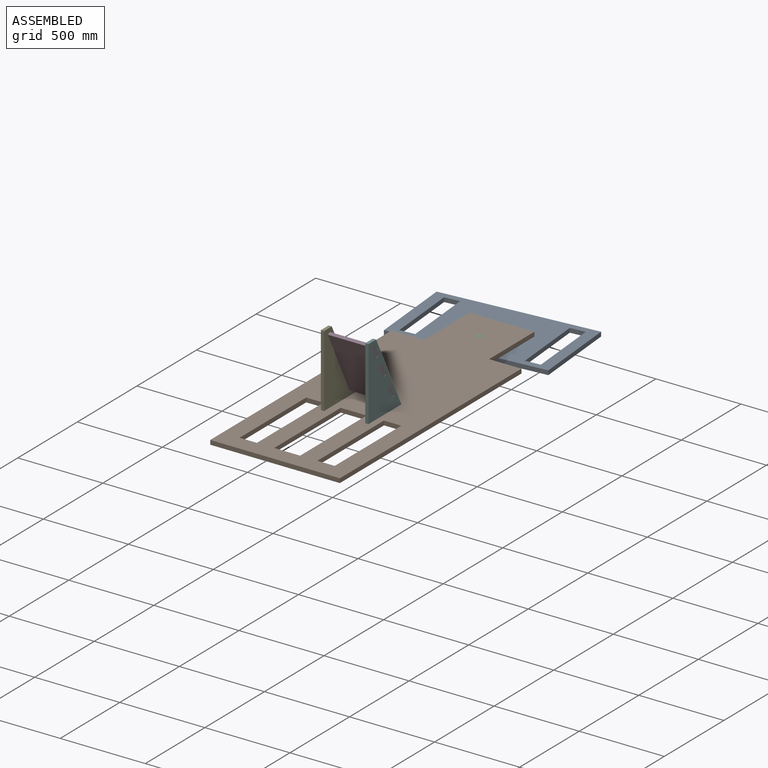
[diagram: assembled view]
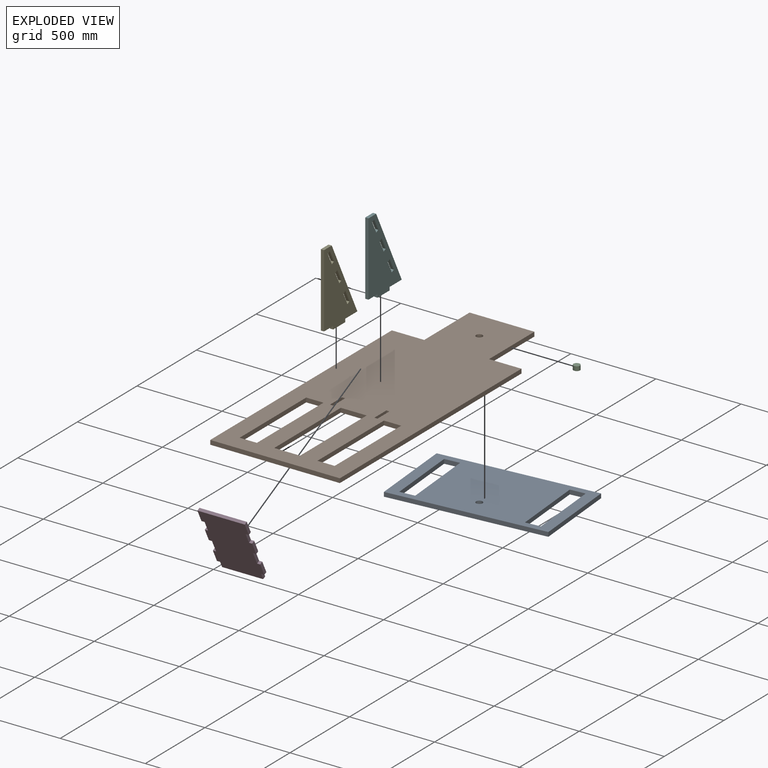
[diagram: exploded view]
GUIDED TOUR — MATED ASSEMBLY (Onshape document 1c93851bcb6e100bab357038, AutoMate assembly 1c93851bcb6e100bab357038_e6ac2ed9f48d29014256909e_0fe0a96ea02c02f15e49d33c_default)

This assembly has 6 components, labeled P0..P5 below (a component is one placed occurrence of a part; the same part can appear more than once), held together by 5 mates. A mate is a constraint between two components; its type names the relative motion it leaves free:
  FASTENED — locks the two components together rigidly (no relative motion),
  REVOLUTE — leaves rotation about the listed axis free (a hinge).
Axis/direction vectors are unit vectors and 'through' points are millimeter coordinates, both in the assembly's world frame.

MATES
  1. FASTENED "Fastened 2": P1 <-> P2, direction (0.000, 0.000, 1.000) through (185.81, 1752.47, -232.34) mm
  2. FASTENED "Fastened 1": P5 <-> P1, direction (0.000, 0.000, -1.000) through (306.72, 799.97, -257.74) mm
  3. FASTENED "Fastened 4": P3 <-> P4, direction (0.000, -0.895, -0.445) through (45.86, 818.07, -168.92) mm
  4. REVOLUTE "Revolute 1": P0 <-> P1, axis (0.000, 0.000, 1.000) through (185.81, 1752.47, -257.74) mm
  5. FASTENED "Fastened 3": P4 <-> P1, direction (0.000, 0.000, -1.000) through (64.91, 799.97, -257.74) mm

ASSEMBLY ORDER
  1. P1 — the base component [order verified]
  2. P4 [order verified]
  3. P5 [order verified]
  4. P3 [order verified]
  5. P2 [order verified]
  6. P0 [order verified]
Order-tag legend:
  [order verified] — this step's position reverses a verified removal order: the component was checked to insert without passing through the ones already placed.

Of the 6 components, 4 carry the full construction recipe — the FeatureScript program that regenerates the part's solid from scratch; the rest are supplied as boundary geometry only.
Each toured component is shown spotlighted twice — in the assembled view, then in the exploded view, where a leader line traces a displaced component back to its assembled socket (saturated green if recipe-attached, orange if geometry-only; every other component desaturated gray) — followed by its recipe or geometry summary and the mates that hold it.
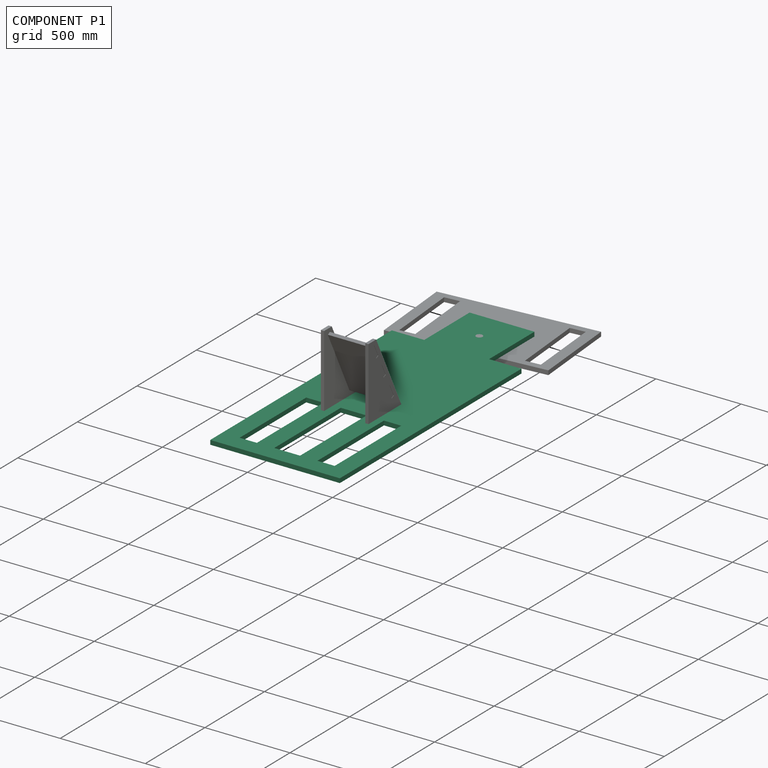
[diagram: component P1 — assembled]
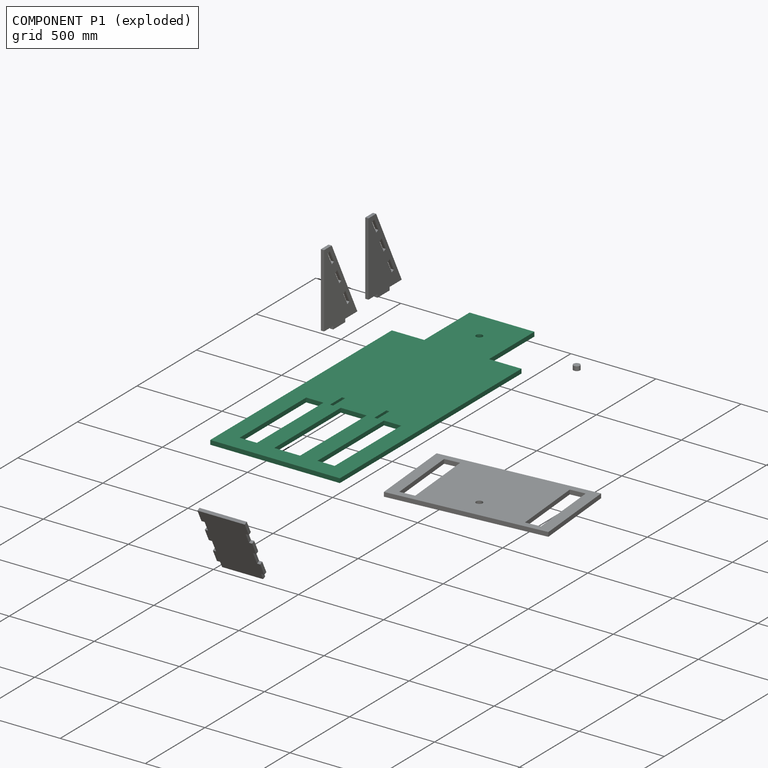
[diagram: component P1 — exploded]
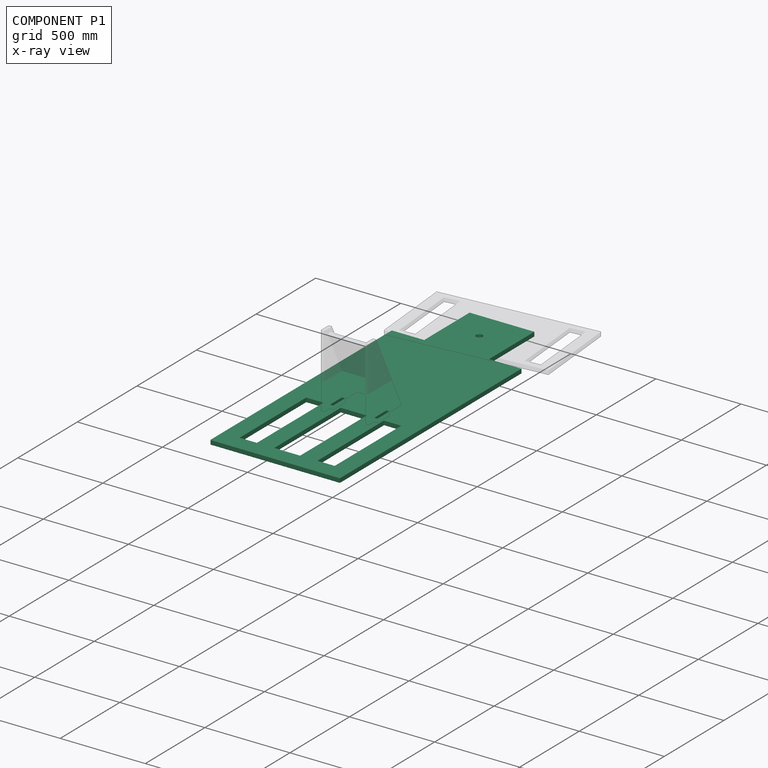
[diagram: component P1 — x-ray view]
COMPONENT P1 — recipe-attached (CADFS 00478632, mesh-verified: the recipe's output STEP matches this component's geometry to below the mesh-comparison resolution (tessellation chordal tolerance ~3.08 mm)).
Held by: FASTENED mate "Fastened 2" to P2; FASTENED mate "Fastened 1" to P5; REVOLUTE mate "Revolute 1" to P0; FASTENED mate "Fastened 3" to P4.
Construction recipe (FeatureScript — the CAD program that rebuilds this solid; sketch coordinates are in the units given by the * unit suffixes, e.g. mm):

FeatureScript 1511;
import(path : "onshape/std/geometry.fs", version : "1511.0");
import(path : "onshape/std/common.fs", version : "1511.0");
const mm = millimeter;
const VERTEX = EntityType.VERTEX;
const EDGE = EntityType.EDGE;
const FACE = EntityType.FACE;
const BODY = EntityType.BODY;
function v(x, y){return vector(x, y);}
function OD(order){return orderDisambiguation(order);}
function OSD(set){return originalSetDisambiguation(set);}
function TD(topology){return topologyDisambiguation(topology);}
function TDD(query){return trueDependencyDisambiguation(query);}
function sQuery(a, b, c) {return sketchEntityQuery(a, b, c);}

annotation { "Feature Type Name" : "Feature", "Feature Type Description" : "" }
export const myFeature = defineFeature(function(context is Context, id is Id, definition is map)
    precondition{}
    {
        {
            var Q0;
            Q0=qCreatedBy(makeId("Top.planeOp"),FACE);
            var sketch = newSketch(context, id + "F0", { "sketchPlane" : qUnion([Q0])});
            skLineSegment(sketch, "E0.bottom", {"start": v(381, 762) * mm, "end": v(-381, 762) * mm});
            skLineSegment(sketch, "E0.top", {"start": v(381, -762) * mm, "end": v(-381, -762) * mm});
            skLineSegment(sketch, "E0.left", {"start": v(381, 762) * mm, "end": v(381, -762) * mm});
            skLineSegment(sketch, "E0.right", {"start": v(-381, 762) * mm, "end": v(-381, -762) * mm});
            skPoint(sketch, "E0.middle", {"position": v(0, 0) * mm});
            skLineSegment(sketch, "E1.bottom", {"start": v(-190.5, 1143) * mm, "end": v(190.5, 1143) * mm});
            skLineSegment(sketch, "E1.top", {"start": v(-190.5, 762) * mm, "end": v(190.5, 762) * mm});
            skLineSegment(sketch, "E1.left", {"start": v(-190.5, 1143) * mm, "end": v(-190.5, 762) * mm});
            skLineSegment(sketch, "E1.right", {"start": v(190.5, 1143) * mm, "end": v(190.5, 762) * mm});
            skLineSegment(sketch, "E2", {"start": v(0, 762) * mm, "end": v(381, 762) * mm, "construction": true});
            skLineSegment(sketch, "E3", {"start": v(0, 762) * mm, "end": v(0, -762) * mm, "construction": true});
            skLineSegment(sketch, "E4.bottom", {"start": v(76.2, -101.6) * mm, "end": v(-76.2, -101.6) * mm});
            skLineSegment(sketch, "E4.top", {"start": v(76.2, -660.4) * mm, "end": v(-76.2, -660.4) * mm});
            skLineSegment(sketch, "E4.left", {"start": v(76.2, -101.6) * mm, "end": v(76.2, -660.4) * mm});
            skLineSegment(sketch, "E4.right", {"start": v(-76.2, -101.6) * mm, "end": v(-76.2, -660.4) * mm});
            skPoint(sketch, "E4.middle", {"position": v(0, -381) * mm});
            skLineSegment(sketch, "E5", {"start": v(-381, -381) * mm, "end": v(381, -381) * mm, "construction": true});
            skPoint(sketch, "E5.startSnap0", {"position": v(-76.2, -381) * mm});
            skPoint(sketch, "E5.endSnap0", {"position": v(76.2, -381) * mm});
            skLineSegment(sketch, "E6.bottom", {"start": v(-177.8, -101.6) * mm, "end": v(-279.4, -101.6) * mm});
            skLineSegment(sketch, "E6.top", {"start": v(-177.8, -660.4) * mm, "end": v(-279.4, -660.4) * mm});
            skLineSegment(sketch, "E6.left", {"start": v(-177.8, -101.6) * mm, "end": v(-177.8, -660.4) * mm});
            skLineSegment(sketch, "E6.right", {"start": v(-279.4, -101.6) * mm, "end": v(-279.4, -660.4) * mm});
            skPoint(sketch, "E6.middle", {"position": v(-228.6, -381) * mm});
            skPoint(sketch, "E7.MirrorP", {"position": v(228.6, -381) * mm});
            skLineSegment(sketch, "E8.MirrorCS", {"start": v(177.8, -101.6) * mm, "end": v(177.8, -660.4) * mm});
            skLineSegment(sketch, "E9.MirrorCS", {"start": v(279.4, -101.6) * mm, "end": v(279.4, -660.4) * mm});
            skLineSegment(sketch, "E10.MirrorCS", {"start": v(177.8, -660.4) * mm, "end": v(279.4, -660.4) * mm});
            skLineSegment(sketch, "E11.MirrorCS", {"start": v(177.8, -101.6) * mm, "end": v(279.4, -101.6) * mm});
            skLineSegment(sketch, "E12", {"start": v(0, -50.8) * mm, "end": v(381, -50.8) * mm, "construction": true});
            skPoint(sketch, "E13.cornerSnap0", {"position": v(190.5, -50.8) * mm});
            skLineSegment(sketch, "E14.bottom", {"start": v(139.45, 0) * mm, "end": v(120.9, 0) * mm});
            skLineSegment(sketch, "E14.top", {"start": v(139.45, -101.6) * mm, "end": v(120.9, -101.6) * mm});
            skLineSegment(sketch, "E14.left", {"start": v(139.45, 0) * mm, "end": v(139.45, -101.6) * mm});
            skLineSegment(sketch, "E14.right", {"start": v(120.9, 0) * mm, "end": v(120.9, -101.6) * mm});
            skPoint(sketch, "E14.middle", {"position": v(130.18, -50.8) * mm});
            skLineSegment(sketch, "E15.MirrorCS", {"start": v(-139.45, 0) * mm, "end": v(-120.9, 0) * mm});
            skLineSegment(sketch, "E16.MirrorCS", {"start": v(-139.45, -101.6) * mm, "end": v(-120.9, -101.6) * mm});
            skLineSegment(sketch, "E17.MirrorCS", {"start": v(-139.45, 0) * mm, "end": v(-139.45, -101.6) * mm});
            skLineSegment(sketch, "E18.MirrorCS", {"start": v(-120.9, 0) * mm, "end": v(-120.9, -101.6) * mm});
            skPoint(sketch, "E19.MirrorP", {"position": v(-130.18, -50.8) * mm});
            skLineSegment(sketch, "E20", {"start": v(0, 1143) * mm, "end": v(0, 762) * mm, "construction": true});
            skCircle(sketch, "E21", {"center": v(0, 952.5) * mm, "radius": 19.05 * mm});
            skSolve(sketch);
        }
        {
            var Q0;
            Q0=makeQuery(id+"F0.imprint","IMPRINT",FACE,{"disambiguationData":[TD([[makeQuery(id+"F0.imprint","IMPRINT",EDGE,{"derivedFrom":sQuery(id+"F0.wireOp",EDGE,"E0.top")}),-1.0]])]});
            var Q1;
            Q1=makeQuery(id+"F0.imprint","IMPRINT",FACE,{"disambiguationData":[TD([[makeQuery(id+"F0.imprint","IMPRINT",EDGE,{"derivedFrom":sQuery(id+"F0.wireOp",EDGE,"E1.bottom")}),-1.0]])]});
            extrude(context, id + "F1", {"entities" : qUnion([Q0, Q1]), "depth" : 25.4 * mm, "offsetDistance" : 25.4 * mm});
        }
    });
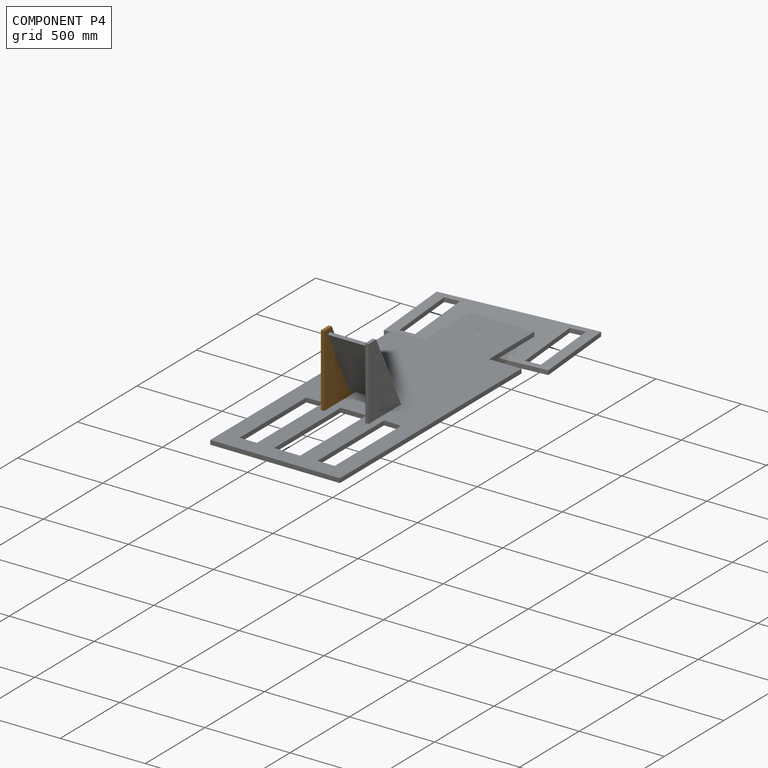
[diagram: component P4 — assembled]
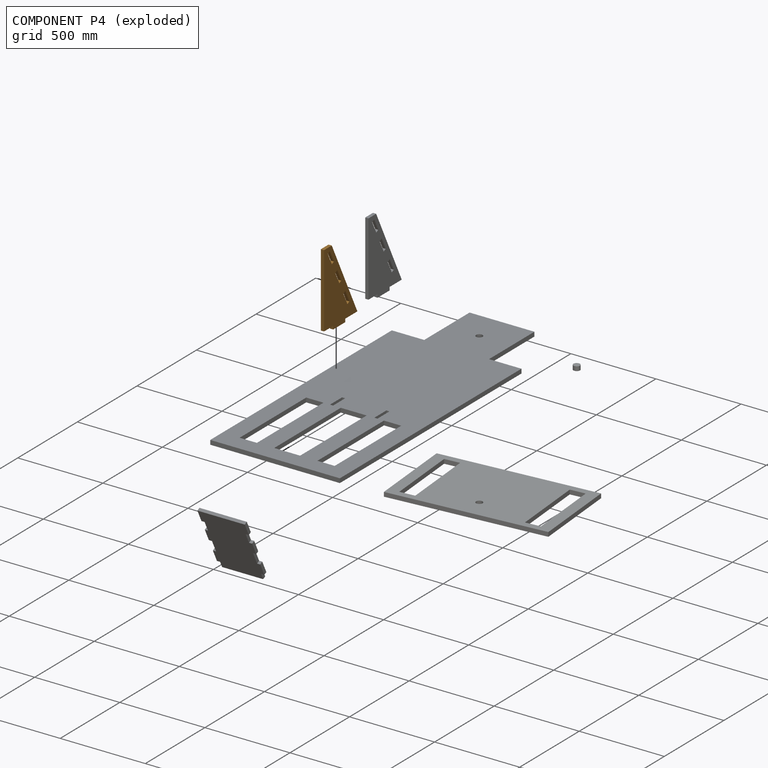
[diagram: component P4 — exploded]
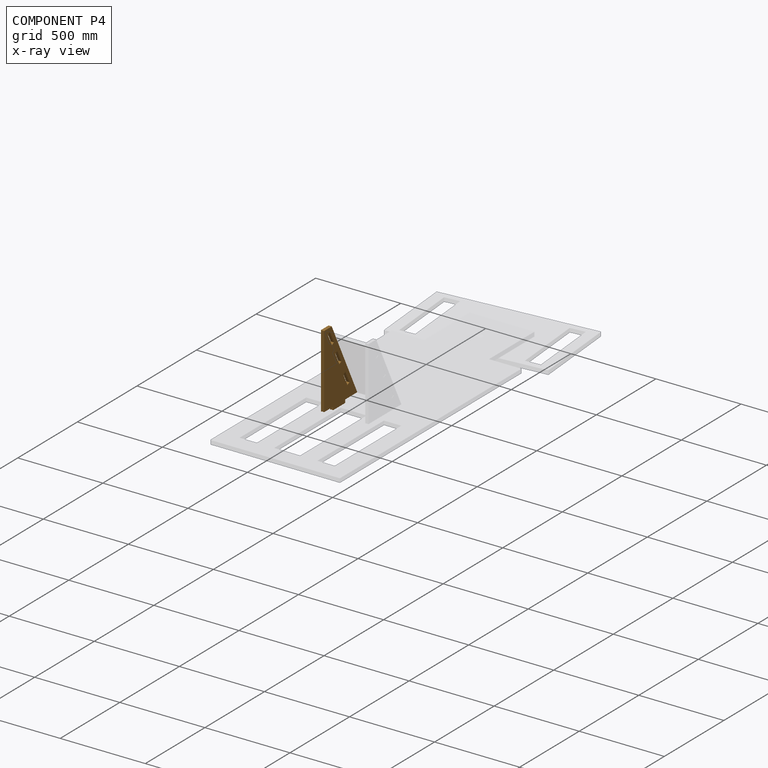
[diagram: component P4 — x-ray view]
COMPONENT P4 — geometry summary (no construction recipe available for this part):
  bounding box: 450.3 x 279.4 x 19.1 mm
  B-rep topology: 1 solid, 22 faces, 120 edges
  volume: 1369392 mm^3 (57% of its bounding box)
  symmetry: mirror-symmetric across its x mid-plane
Held by: FASTENED mate "Fastened 4" to P3; FASTENED mate "Fastened 3" to P1.
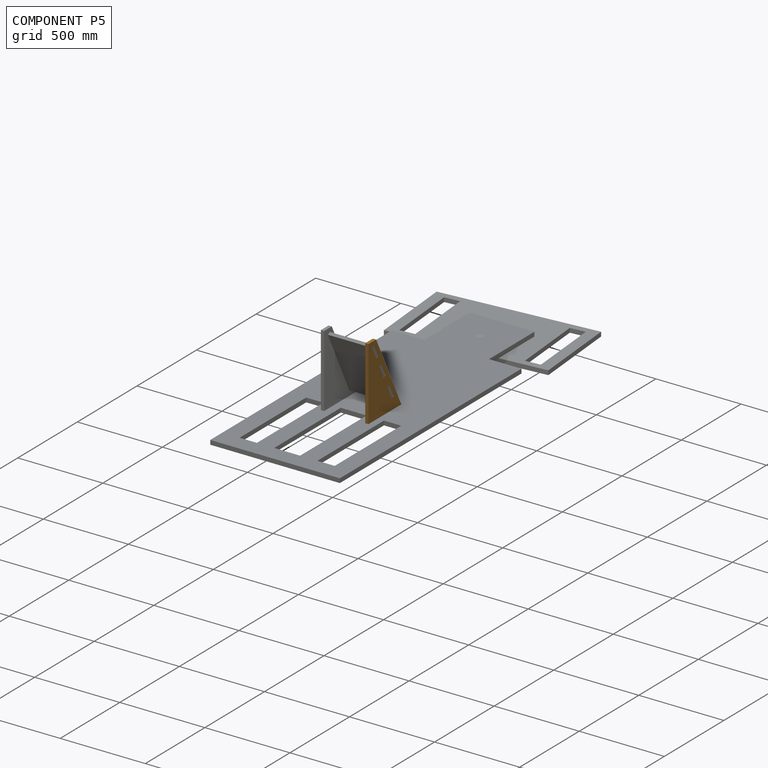
[diagram: component P5 — assembled]
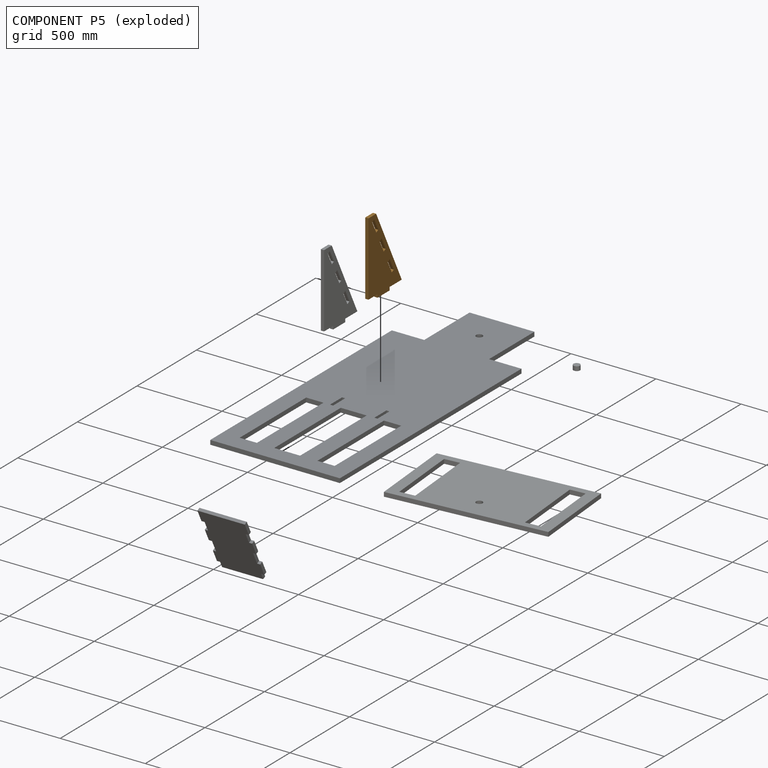
[diagram: component P5 — exploded]
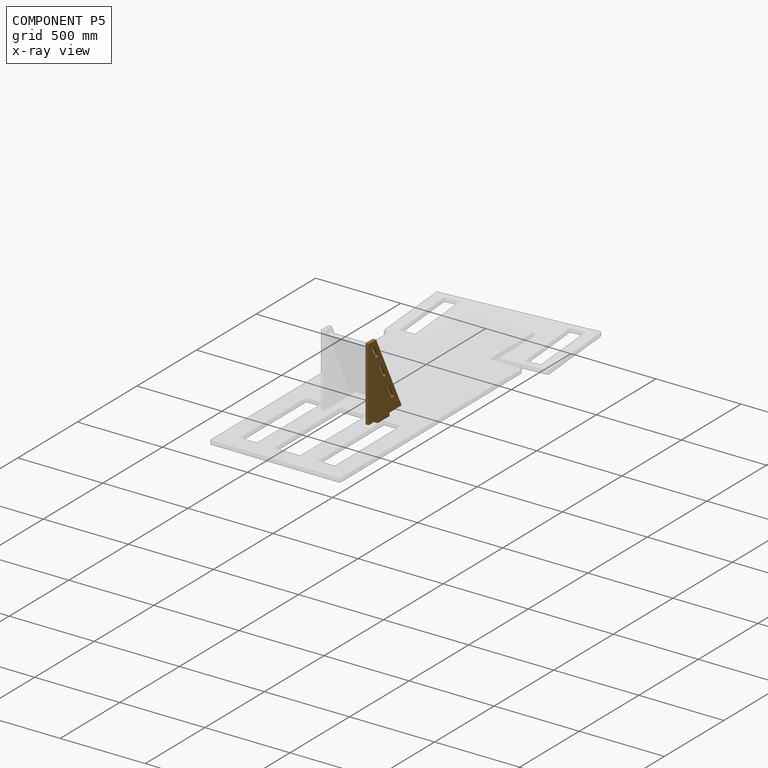
[diagram: component P5 — x-ray view]
COMPONENT P5 — geometry summary (no construction recipe available for this part):
  bounding box: 450.3 x 279.4 x 19.1 mm
  B-rep topology: 1 solid, 22 faces, 120 edges
  volume: 1369392 mm^3 (57% of its bounding box)
  symmetry: mirror-symmetric across its x mid-plane
Held by: FASTENED mate "Fastened 1" to P1.
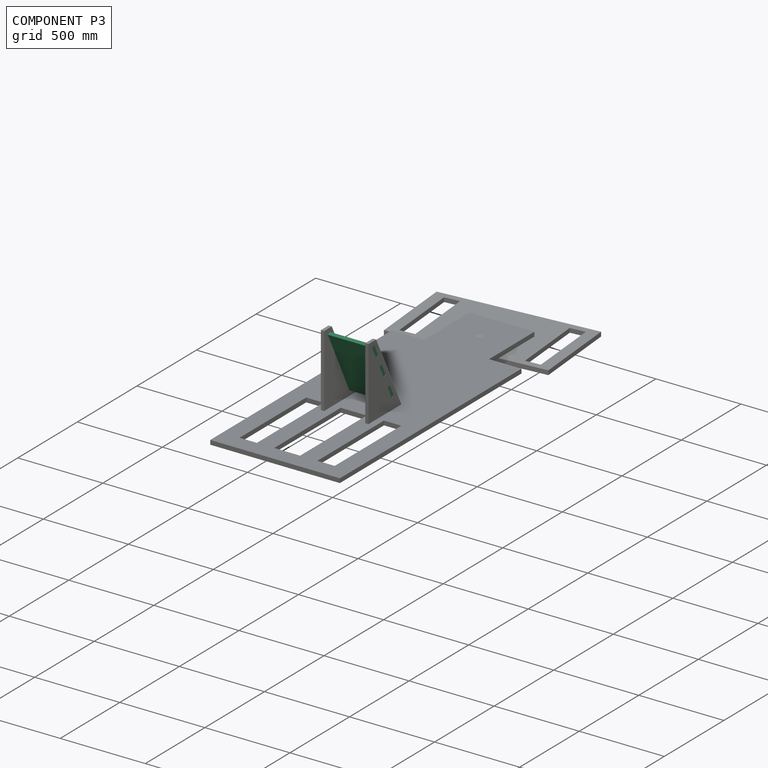
[diagram: component P3 — assembled]
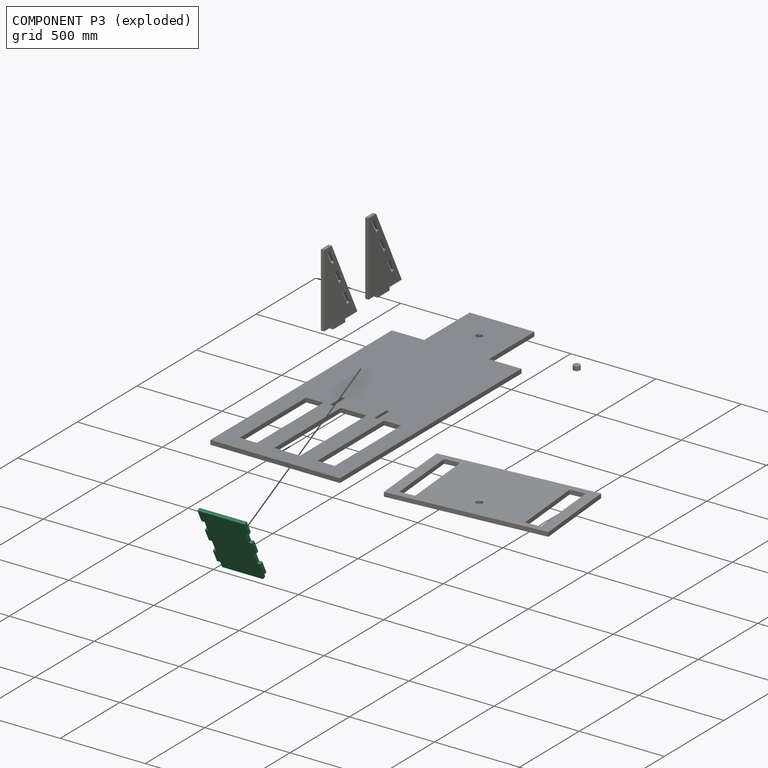
[diagram: component P3 — exploded]
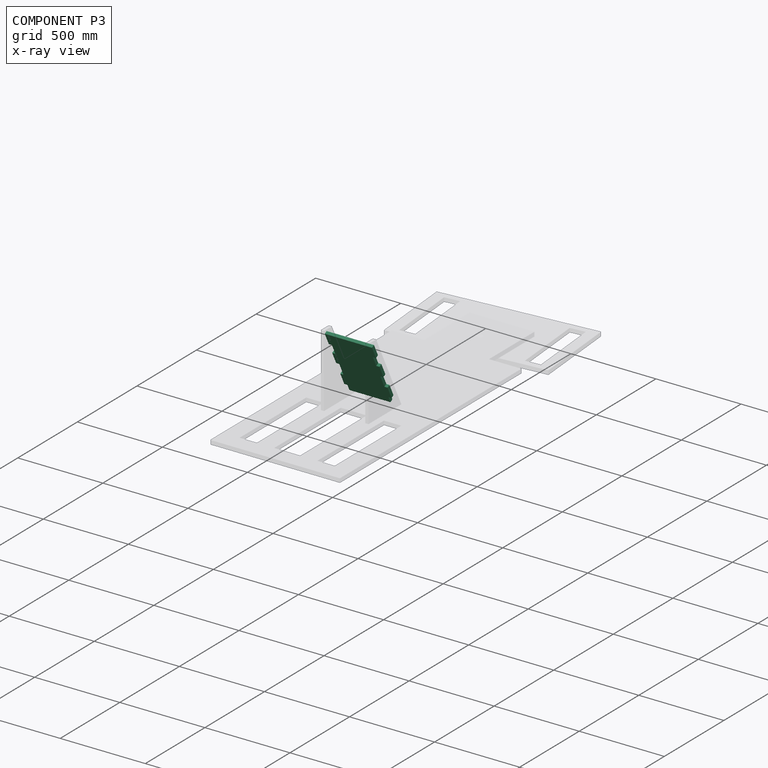
[diagram: component P3 — x-ray view]
COMPONENT P3 — recipe-attached (CADFS 00478639, mesh-verified: the recipe's output STEP matches this component's geometry to below the mesh-comparison resolution (tessellation chordal tolerance ~0.739 mm)).
Held by: FASTENED mate "Fastened 4" to P4.
Construction recipe (FeatureScript — the CAD program that rebuilds this solid; sketch coordinates are in the units given by the * unit suffixes, e.g. mm):

FeatureScript 1511;
import(path : "onshape/std/geometry.fs", version : "1511.0");
import(path : "onshape/std/common.fs", version : "1511.0");
const mm = millimeter;
const VERTEX = EntityType.VERTEX;
const EDGE = EntityType.EDGE;
const FACE = EntityType.FACE;
const BODY = EntityType.BODY;
function v(x, y){return vector(x, y);}
function OD(order){return orderDisambiguation(order);}
function OSD(set){return originalSetDisambiguation(set);}
function TD(topology){return topologyDisambiguation(topology);}
function TDD(query){return trueDependencyDisambiguation(query);}
function sQuery(a, b, c) {return sketchEntityQuery(a, b, c);}

annotation { "Feature Type Name" : "Feature", "Feature Type Description" : "" }
export const myFeature = defineFeature(function(context is Context, id is Id, definition is map)
    precondition{}
    {
        {
            var Q0;
            Q0=qCreatedBy(makeId("Top.planeOp"),FACE);
            var sketch = newSketch(context, id + "F0", { "sketchPlane" : qUnion([Q0])});
            skLineSegment(sketch, "E0.bottom", {"start": v(-223.37, 245.65) * mm, "end": v(17.93, 245.65) * mm});
            skLineSegment(sketch, "E0.top", {"start": v(-223.37, -160.75) * mm, "end": v(17.93, -160.75) * mm});
            skLineSegment(sketch, "E0.left", {"start": v(-223.37, 245.65) * mm, "end": v(-223.37, -160.75) * mm});
            skLineSegment(sketch, "E0.right", {"start": v(17.93, 245.65) * mm, "end": v(17.93, -160.75) * mm});
            skLineSegment(sketch, "E1.bottom", {"start": v(17.93, 245.65) * mm, "end": v(36.47, 245.65) * mm});
            skLineSegment(sketch, "E1.top", {"start": v(17.93, 169.45) * mm, "end": v(36.47, 169.45) * mm});
            skLineSegment(sketch, "E1.left", {"start": v(17.93, 245.65) * mm, "end": v(17.93, 169.45) * mm});
            skLineSegment(sketch, "E1.right", {"start": v(36.47, 245.65) * mm, "end": v(36.47, 169.45) * mm});
            skPoint(sketch, "E2.oppositeSnap0", {"position": v(36.47, 207.55) * mm});
            skLineSegment(sketch, "E2.bottom", {"start": v(17.93, 105.95) * mm, "end": v(36.47, 105.95) * mm});
            skLineSegment(sketch, "E2.top", {"start": v(17.93, 29.75) * mm, "end": v(36.47, 29.75) * mm});
            skLineSegment(sketch, "E2.left", {"start": v(17.93, 105.95) * mm, "end": v(17.93, 29.75) * mm});
            skLineSegment(sketch, "E2.right", {"start": v(36.47, 105.95) * mm, "end": v(36.47, 29.75) * mm});
            skLineSegment(sketch, "E3.bottom", {"start": v(17.93, -46.45) * mm, "end": v(36.47, -46.45) * mm});
            skLineSegment(sketch, "E3.top", {"start": v(17.93, -122.65) * mm, "end": v(36.47, -122.65) * mm});
            skLineSegment(sketch, "E3.left", {"start": v(17.93, -46.45) * mm, "end": v(17.93, -122.65) * mm});
            skLineSegment(sketch, "E3.right", {"start": v(36.47, -46.45) * mm, "end": v(36.47, -122.65) * mm});
            skLineSegment(sketch, "E4", {"start": v(-102.72, 245.65) * mm, "end": v(-102.72, -160.75) * mm, "construction": true});
            skLineSegment(sketch, "E5.MirrorCS", {"start": v(-223.37, 169.45) * mm, "end": v(-241.91, 169.45) * mm});
            skLineSegment(sketch, "E6.MirrorCS", {"start": v(-241.91, 245.65) * mm, "end": v(-241.91, 169.45) * mm});
            skLineSegment(sketch, "E7.MirrorCS", {"start": v(-223.37, 245.65) * mm, "end": v(-241.91, 245.65) * mm});
            skLineSegment(sketch, "E8.MirrorCS", {"start": v(-223.37, 105.95) * mm, "end": v(-241.91, 105.95) * mm});
            skLineSegment(sketch, "E9.MirrorCS", {"start": v(-241.91, 105.95) * mm, "end": v(-241.91, 29.75) * mm});
            skLineSegment(sketch, "E10.MirrorCS", {"start": v(-223.37, 29.75) * mm, "end": v(-241.91, 29.75) * mm});
            skLineSegment(sketch, "E11.MirrorCS", {"start": v(-223.37, -46.45) * mm, "end": v(-241.91, -46.45) * mm});
            skLineSegment(sketch, "E12.MirrorCS", {"start": v(-241.91, -46.45) * mm, "end": v(-241.91, -122.65) * mm});
            skLineSegment(sketch, "E13.MirrorCS", {"start": v(-223.37, -122.65) * mm, "end": v(-241.91, -122.65) * mm});
            skSolve(sketch);
        }
        {
            var Q0;
            {var subQ10=sQuery(id+"F0.wireOp",EDGE,"E0.bottom");Q0=makeQuery(id+"F0.imprint","IMPRINT",FACE,{"disambiguationData":[TD([[makeQuery(id+"F0.imprint","IMPRINT",EDGE,{"derivedFrom":subQ10}),-1.0]])]});}
            var Q1;
            Q1=makeQuery(id+"F0.imprint","IMPRINT",FACE,{"disambiguationData":[TD([[makeQuery(id+"F0.imprint","IMPRINT",EDGE,{"derivedFrom":sQuery(id+"F0.wireOp",EDGE,"E1.bottom")}),-1.0]])]});
            var Q2;
            Q2=makeQuery(id+"F0.imprint","IMPRINT",FACE,{"disambiguationData":[TD([[makeQuery(id+"F0.imprint","IMPRINT",EDGE,{"derivedFrom":sQuery(id+"F0.wireOp",EDGE,"E2.bottom")}),-1.0]])]});
            var Q3;
            Q3=makeQuery(id+"F0.imprint","IMPRINT",FACE,{"disambiguationData":[TD([[makeQuery(id+"F0.imprint","IMPRINT",EDGE,{"derivedFrom":sQuery(id+"F0.wireOp",EDGE,"E3.bottom")}),-1.0]])]});
            var Q4;
            {var subQ0=sQuery(id+"F0.wireOp",EDGE,"E11.MirrorCS");Q4=makeQuery(id+"F0.imprint","IMPRINT",FACE,{"disambiguationData":[TD([[makeQuery(id+"F0.imprint","IMPRINT",EDGE,{"derivedFrom":subQ0}),1.0]])]});}
            var Q5;
            {var subQ0=sQuery(id+"F0.wireOp",EDGE,"E8.MirrorCS");Q5=makeQuery(id+"F0.imprint","IMPRINT",FACE,{"disambiguationData":[TD([[makeQuery(id+"F0.imprint","IMPRINT",EDGE,{"derivedFrom":subQ0}),1.0]])]});}
            var Q6;
            {var subQ2=sQuery(id+"F0.wireOp",EDGE,"E5.MirrorCS");Q6=makeQuery(id+"F0.imprint","IMPRINT",FACE,{"disambiguationData":[TD([[makeQuery(id+"F0.imprint","IMPRINT",EDGE,{"derivedFrom":subQ2}),-1.0]])]});}
            extrude(context, id + "F1", {"entities" : qUnion([Q0, Q1, Q2, Q3, Q4, Q5, Q6]), "depth" : 19.05 * mm, "offsetDistance" : 25.4 * mm});
        }
    });
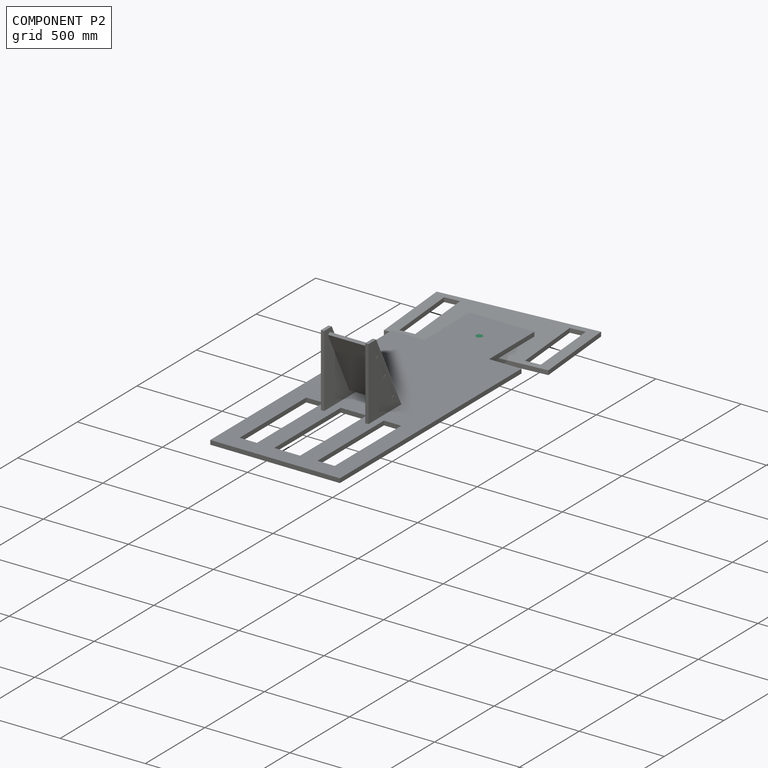
[diagram: component P2 — assembled]
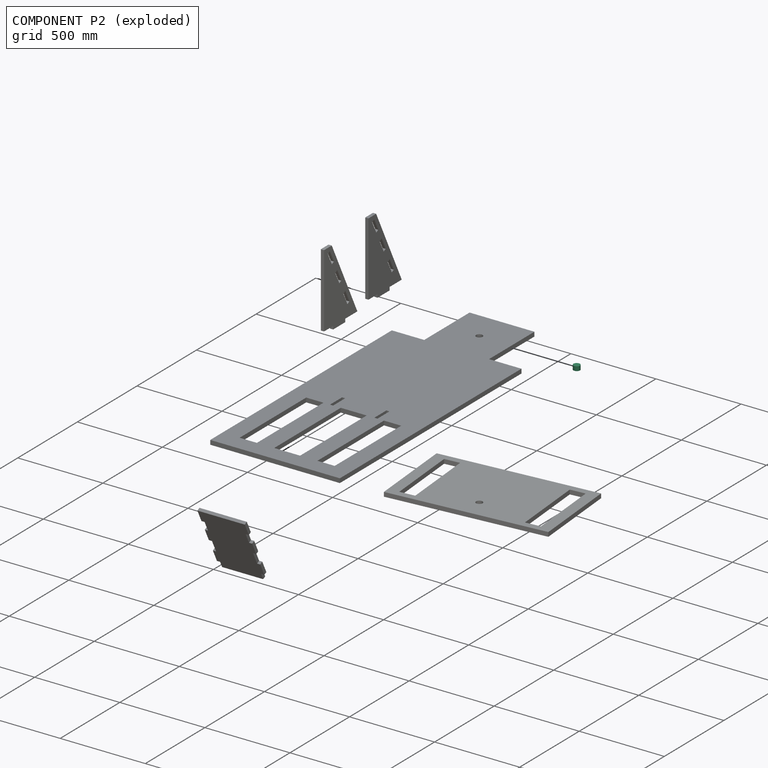
[diagram: component P2 — exploded]
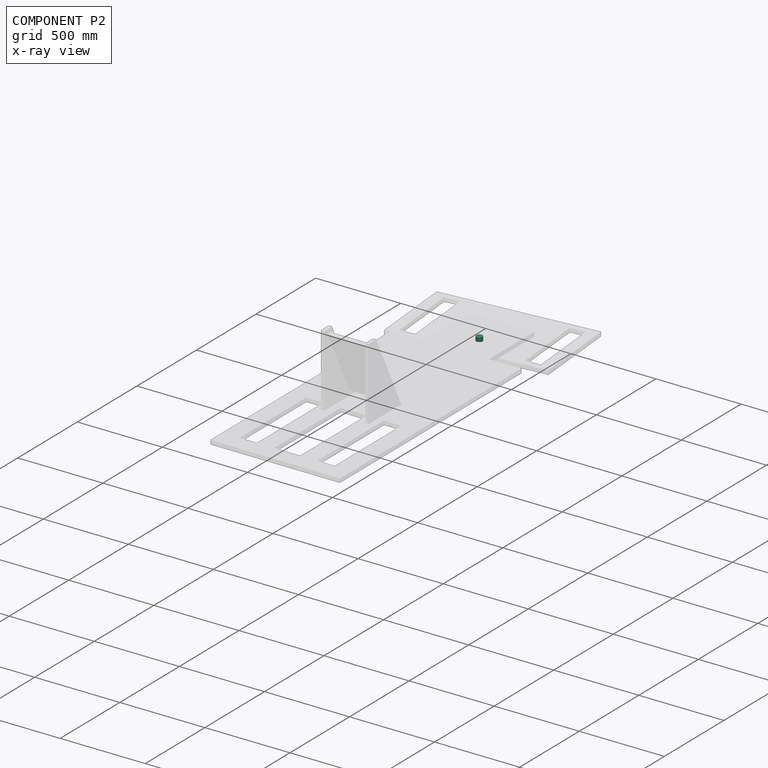
[diagram: component P2 — x-ray view]
COMPONENT P2 — recipe-attached (CADFS 00478635, mesh-verified: the recipe's output STEP matches this component's geometry to below the mesh-comparison resolution (tessellation chordal tolerance ~0.0893 mm)).
Held by: FASTENED mate "Fastened 2" to P1.
Construction recipe (FeatureScript — the CAD program that rebuilds this solid; sketch coordinates are in the units given by the * unit suffixes, e.g. mm):

FeatureScript 1511;
import(path : "onshape/std/geometry.fs", version : "1511.0");
import(path : "onshape/std/common.fs", version : "1511.0");
const mm = millimeter;
const VERTEX = EntityType.VERTEX;
const EDGE = EntityType.EDGE;
const FACE = EntityType.FACE;
const BODY = EntityType.BODY;
function v(x, y){return vector(x, y);}
function OD(order){return orderDisambiguation(order);}
function OSD(set){return originalSetDisambiguation(set);}
function TD(topology){return topologyDisambiguation(topology);}
function TDD(query){return trueDependencyDisambiguation(query);}
function sQuery(a, b, c) {return sketchEntityQuery(a, b, c);}

annotation { "Feature Type Name" : "Feature", "Feature Type Description" : "" }
export const myFeature = defineFeature(function(context is Context, id is Id, definition is map)
    precondition{}
    {
        {
            var Q0;
            Q0=qCreatedBy(makeId("Top.planeOp"),FACE);
            var sketch = newSketch(context, id + "F0", { "sketchPlane" : qUnion([Q0])});
            skCircle(sketch, "E0", {"center": v(1.42, 0) * mm, "radius": 19.05 * mm});
            skSolve(sketch);
        }
        {
            var Q0;
            Q0=makeQuery(id+"F0.imprint","IMPRINT",FACE,{"disambiguationData":[TD([[makeQuery(id+"F0.imprint","IMPRINT",EDGE,{"derivedFrom":sQuery(id+"F0.wireOp",EDGE,"E0")}),1.0]])]});
            extrude(context, id + "F1", {"entities" : qUnion([Q0]), "depth" : 25.4 * mm, "offsetDistance" : 25.4 * mm});
        }
    });
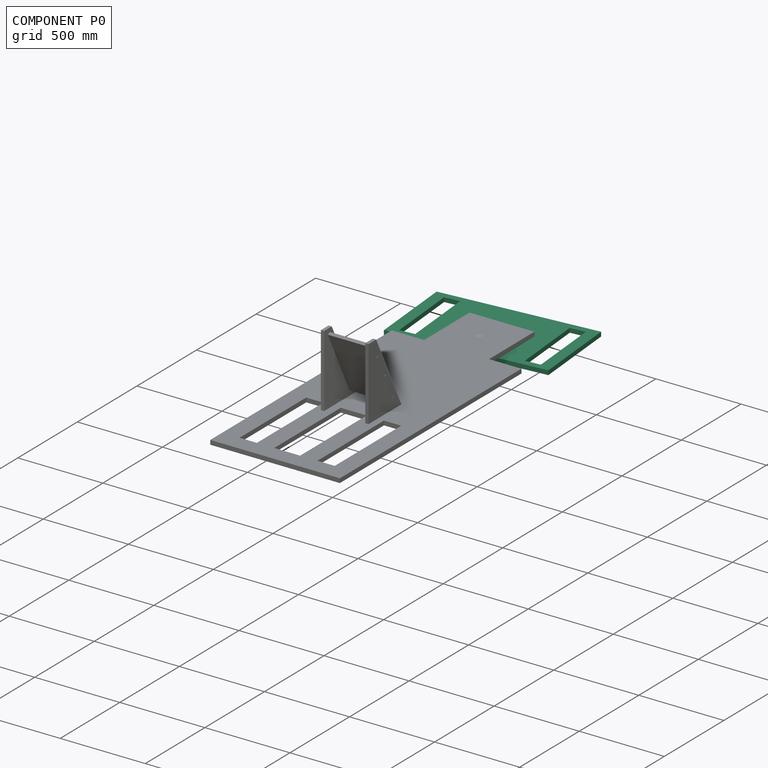
[diagram: component P0 — assembled]
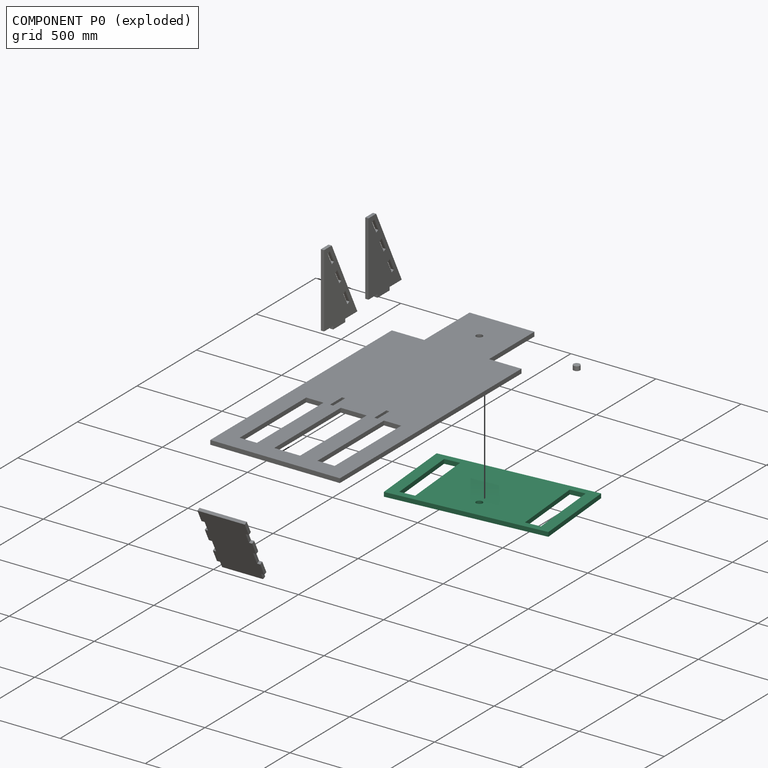
[diagram: component P0 — exploded]
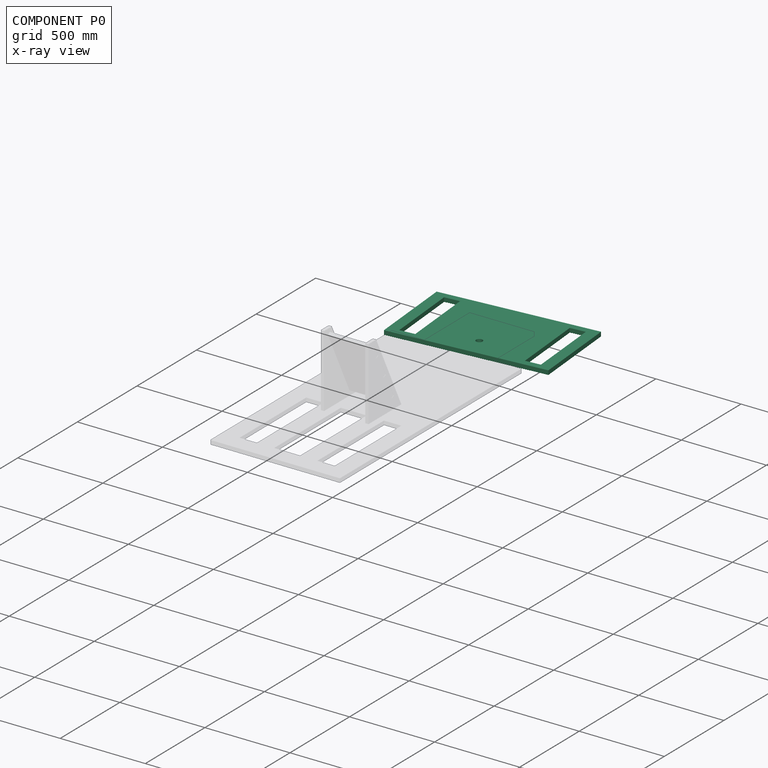
[diagram: component P0 — x-ray view]
COMPONENT P0 — recipe-attached (CADFS 00478634, mesh-verified: the recipe's output STEP matches this component's geometry to below the mesh-comparison resolution (tessellation chordal tolerance ~1.57 mm)).
Held by: REVOLUTE mate "Revolute 1" to P1.
Construction recipe (FeatureScript — the CAD program that rebuilds this solid; sketch coordinates are in the units given by the * unit suffixes, e.g. mm):

FeatureScript 1511;
import(path : "onshape/std/geometry.fs", version : "1511.0");
import(path : "onshape/std/common.fs", version : "1511.0");
const mm = millimeter;
const VERTEX = EntityType.VERTEX;
const EDGE = EntityType.EDGE;
const FACE = EntityType.FACE;
const BODY = EntityType.BODY;
function v(x, y){return vector(x, y);}
function OD(order){return orderDisambiguation(order);}
function OSD(set){return originalSetDisambiguation(set);}
function TD(topology){return topologyDisambiguation(topology);}
function TDD(query){return trueDependencyDisambiguation(query);}
function sQuery(a, b, c) {return sketchEntityQuery(a, b, c);}

annotation { "Feature Type Name" : "Feature", "Feature Type Description" : "" }
export const myFeature = defineFeature(function(context is Context, id is Id, definition is map)
    precondition{}
    {
        {
            var Q0;
            Q0=qCreatedBy(makeId("Top.planeOp"),FACE);
            var sketch = newSketch(context, id + "F0", { "sketchPlane" : qUnion([Q0])});
            skLineSegment(sketch, "E0.bottom", {"start": v(-444.73, 136.84) * mm, "end": v(469.67, 136.84) * mm});
            skLineSegment(sketch, "E0.top", {"start": v(-444.73, -371.16) * mm, "end": v(469.67, -371.16) * mm});
            skLineSegment(sketch, "E0.left", {"start": v(-444.73, 136.84) * mm, "end": v(-444.73, -371.16) * mm});
            skLineSegment(sketch, "E0.right", {"start": v(469.67, 136.84) * mm, "end": v(469.67, -371.16) * mm});
            skLineSegment(sketch, "E1", {"start": v(12.47, 136.84) * mm, "end": v(12.47, -371.16) * mm, "construction": true});
            skLineSegment(sketch, "E2.bottom", {"start": v(-381.23, 98.74) * mm, "end": v(-292.33, 98.74) * mm});
            skLineSegment(sketch, "E2.top", {"start": v(-381.23, -333.06) * mm, "end": v(-292.33, -333.06) * mm});
            skLineSegment(sketch, "E2.left", {"start": v(-381.23, 98.74) * mm, "end": v(-381.23, -333.06) * mm});
            skLineSegment(sketch, "E2.right", {"start": v(-292.33, 98.74) * mm, "end": v(-292.33, -333.06) * mm});
            skLineSegment(sketch, "E3", {"start": v(-292.33, -333.06) * mm, "end": v(-292.33, -371.16) * mm, "construction": true});
            skLineSegment(sketch, "E4", {"start": v(-381.23, -333.06) * mm, "end": v(-444.73, -333.06) * mm});
            skLineSegment(sketch, "E5.MirrorCS", {"start": v(406.17, -333.06) * mm, "end": v(317.27, -333.06) * mm});
            skLineSegment(sketch, "E6.MirrorCS", {"start": v(406.17, 98.74) * mm, "end": v(406.17, -333.06) * mm});
            skLineSegment(sketch, "E7.MirrorCS", {"start": v(317.27, 98.74) * mm, "end": v(317.27, -333.06) * mm});
            skLineSegment(sketch, "E8.MirrorCS", {"start": v(406.17, 98.74) * mm, "end": v(317.27, 98.74) * mm});
            skCircle(sketch, "E9", {"center": v(12.47, 9.84) * mm, "radius": 19.05 * mm});
            skSolve(sketch);
        }
        {
            var Q0;
            {var subQ0=sQuery(id+"F0.wireOp",EDGE,"E0.bottom");Q0=makeQuery(id+"F0.imprint","IMPRINT",FACE,{"disambiguationData":[TD([[makeQuery(id+"F0.imprint","IMPRINT",EDGE,{"derivedFrom":subQ0}),-1.0]])]});}
            extrude(context, id + "F1", {"entities" : qUnion([Q0]), "depth" : 25.4 * mm, "offsetDistance" : 25.4 * mm});
        }
    });
PROVENANCE & LICENSES
Assembly (occurrences, transforms, mates, per-part STEP geometry): AutoMate dataset, Zenodo record 7776208, CC0.
Construction recipes: CADFS (HuggingFace VladPyatov/CADFS, CC-BY-4.0, layered over the ABC dataset), FeatureScript reconstruction programs keyed by ABC model id.
Join: ABC meta listings map ABC model id -> Onshape documentId; within a shared document, parts are matched by geometric signature (bounding-box dims + volume at 0.1% relative tolerance, exact B-rep face/solid counts).
Verification: 4 of this assembly's 6 components carry a recipe attachment, and every attachment is mesh-verified: the CADFS STEP and the AutoMate member STEP were compared as meshes in their shared local frame (symmetric sampled-point-to-mesh distance); worst across the 4 attachments: below the mesh-comparison resolution (tessellation chordal tolerance ~3.08 mm) on a 2052 mm part.
Renders: orthographic iso camera (az 35 / el 25); the floor grid conveys scale (grid pitch printed in each image; no ruler). In the exploded view each component is displaced by its stored offset vector: the offsets alone carry the explosion direction (mate normal/axis signs are not orientation cues and do not encode it), and separation distances are assigned per mate-chain, not proportionally to assembly-order depth.
